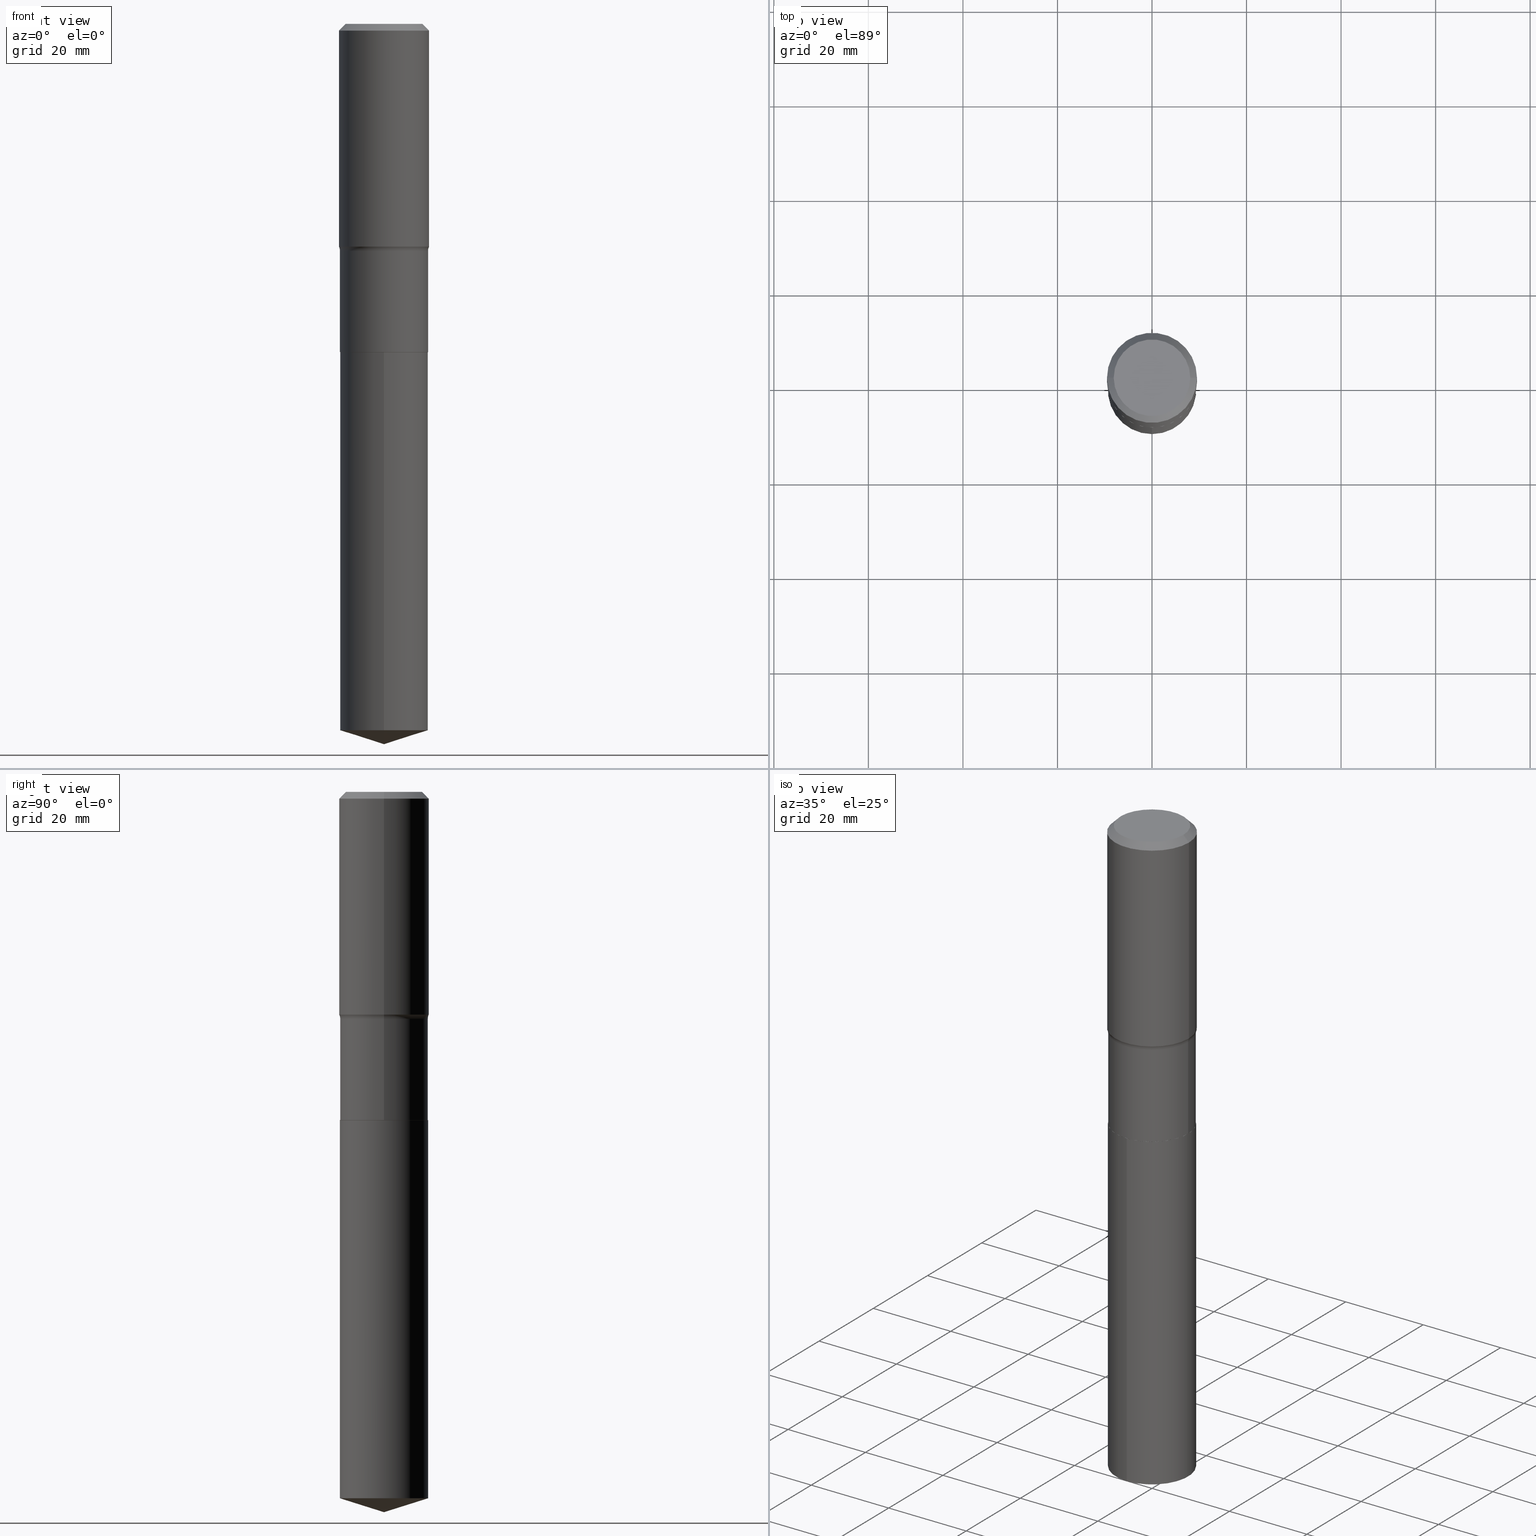
[diagram: canonical four-view strip — front | top / right | iso, engineering-drawing reading convention]
A machine part, canonical four-view strip (front | top / right | iso — engineering-drawing reading convention). The complete STEP part file that produces these views, byte-faithful:
ISO-10303-21;
HEADER;
FILE_DESCRIPTION (( 'STEP AP203' ),
    '1' );
FILE_NAME ('51544.STEP',
    '2024-04-19T13:01:56',
    ( '' ),
    ( '' ),
    'SwSTEP 2.0',
    'SolidWorks 2023',
    '' );
FILE_SCHEMA (( 'CONFIG_CONTROL_DESIGN' ));
ENDSEC;

DATA;
#1 = PERSON ( 'UNSPECIFIED', 'UNSPECIFIED', 'UNSPECIFIED', ('UNSPECIFIED'), ('UNSPECIFIED'), ('UNSPECIFIED') ) ;
#2 = DIRECTION ( 'NONE',  ( 1.000000000000000000, -6.982962677686265133E-15, 0.000000000000000000 ) ) ;
#3 = APPROVAL_PERSON_ORGANIZATION ( #368, #196, #58 ) ;
#4 = ORIENTED_EDGE ( 'NONE', *, *, #281, .T. ) ;
#5 = EDGE_CURVE ( 'NONE', #208, #383, #353, .T. ) ;
#6 = DIRECTION ( 'NONE',  ( 1.000000000000000000, -6.982962677686265922E-15, 4.876176775795935793E-29 ) ) ;
#7 = EDGE_CURVE ( 'NONE', #394, #337, #16, .T. ) ;
#8 = DIRECTION ( 'NONE',  ( -1.000000000000000000, 7.105427357601001859E-15, 0.000000000000000000 ) ) ;
#9 = ORIENTED_EDGE ( 'NONE', *, *, #442, .T. ) ;
#10 = CARTESIAN_POINT ( 'NONE',  ( -0.3667000000000000814, -6.938897133726299392E-15, -2.734400000000000830 ) ) ;
#11 = AXIS2_PLACEMENT_3D ( 'NONE', #232, #270, #197 ) ;
#12 = VERTEX_POINT ( 'NONE', #240 ) ;
#13 = DIMENSIONAL_EXPONENTS ( 1.000000000000000000, 0.000000000000000000, 0.000000000000000000, 0.000000000000000000, 0.000000000000000000, 0.000000000000000000, 0.000000000000000000 ) ;
#14 = AXIS2_PLACEMENT_3D ( 'NONE', #104, #105, #483 ) ;
#15 = APPROVAL_DATE_TIME ( #352, #411 ) ;
#16 = LINE ( 'NONE', #282, #39 ) ;
#17 = DIRECTION ( 'NONE',  ( 1.000000000000000000, -6.982962677686264344E-15, 0.000000000000000000 ) ) ;
#18 = CARTESIAN_POINT ( 'NONE',  ( -8.160539444729356749E-28, 1.165111391921115396E-13, 33.37007874015748143 ) ) ;
#19 = CIRCLE ( 'NONE', #247, 0.3750000000000000555 ) ;
#20 = CIRCLE ( 'NONE', #289, 0.3667000000000000814 ) ;
#21 = ORIENTED_EDGE ( 'NONE', *, *, #153, .F. ) ;
#22 = PRODUCT ( '51544', '51544', '', ( #76 ) ) ;
#23 = EDGE_CURVE ( 'NONE', #62, #340, #279, .T. ) ;
#24 = DIRECTION ( 'NONE',  ( 0.7071067811865454633, -7.319954787623248157E-15, -0.7071067811865495711 ) ) ;
#25 = PERSON_AND_ORGANIZATION ( #1, #215 ) ;
#26 = PERSON_AND_ORGANIZATION ( #1, #215 ) ;
#27 = EDGE_CURVE ( 'NONE', #155, #91, #130, .T. ) ;
#28 = CARTESIAN_POINT ( 'NONE',  ( 0.000000000000000000, 0.000000000000000000, 0.000000000000000000 ) ) ;
#29 = DIRECTION ( 'NONE',  ( -6.982962677686265922E-15, -1.000000000000000000, 2.975869274144077348E-15 ) ) ;
#30 = AXIS2_PLACEMENT_3D ( 'NONE', #164, #373, #78 ) ;
#31 = AXIS2_PLACEMENT_3D ( 'NONE', #187, #49, #264 ) ;
#32 = FACE_OUTER_BOUND ( 'NONE', #157, .T. ) ;
#33 = CARTESIAN_POINT ( 'NONE',  ( 0.000000000000000000, 0.000000000000000000, 0.000000000000000000 ) ) ;
#34 = DIRECTION ( 'NONE',  ( -2.445466253269083818E-29, 3.491484994764236272E-15, 1.000000000000000000 ) ) ;
#35 = DIRECTION ( 'NONE',  ( 1.000000000000000000, -6.982962677686267499E-15, 4.876176775795935793E-29 ) ) ;
#36 = FACE_OUTER_BOUND ( 'NONE', #265, .T. ) ;
#37 = AXIS2_PLACEMENT_3D ( 'NONE', #329, #34, #216 ) ;
#38 = CARTESIAN_POINT ( 'NONE',  ( 6.686889903632638979E-29, -9.547106572932700526E-15, -2.734400000000000830 ) ) ;
#39 = VECTOR ( 'NONE', #361, 39.37007874015748143 ) ;
#40 = CARTESIAN_POINT ( 'NONE',  ( 0.000000000000000000, 0.000000000000000000, 0.000000000000000000 ) ) ;
#41 = ORIENTED_EDGE ( 'NONE', *, *, #228, .T. ) ;
#42 = FACE_OUTER_BOUND ( 'NONE', #379, .T. ) ;
#43 = ORIENTED_EDGE ( 'NONE', *, *, #88, .T. ) ;
#44 = LINE ( 'NONE', #450, #341 ) ;
#45 = LOCAL_TIME ( 9, 1, 56.00000000000000000, #95 ) ;
#46 = ORIENTED_EDGE ( 'NONE', *, *, #328, .F. ) ;
#47 = VECTOR ( 'NONE', #179, 39.37007874015748143 ) ;
#48 = DATE_TIME_ROLE ( 'creation_date' ) ;
#49 = DIRECTION ( 'NONE',  ( -2.445468806185136597E-29, 3.491481338843145583E-15, 1.000000000000000000 ) ) ;
#50 = EDGE_LOOP ( 'NONE', ( #116, #400, #43, #152 ) ) ;
#51 = ADVANCED_FACE ( 'NONE', ( #425 ), #399, .T. ) ;
#52 = APPROVAL_STATUS ( 'not_yet_approved' ) ;
#53 = DIRECTION ( 'NONE',  ( -2.445468806185136597E-29, 3.491481338843145583E-15, 1.000000000000000000 ) ) ;
#54 = ORIENTED_EDGE ( 'NONE', *, *, #235, .F. ) ;
#55 = APPLICATION_CONTEXT ( 'configuration controlled 3d designs of mechanical parts and assemblies' ) ;
#56 = ADVANCED_BREP_SHAPE_REPRESENTATION ( '51544', ( #191, #334, #427 ), #300 ) ;
#57 = APPROVAL_ROLE ( '' ) ;
#58 = APPROVAL_ROLE ( '' ) ;
#59 = CIRCLE ( 'NONE', #293, 0.3672000000000000264 ) ;
#60 = CARTESIAN_POINT ( 'NONE',  ( -0.3750000000000000555, -6.734092147823022708E-16, -0.05625000000000037609 ) ) ;
#61 = COORDINATED_UNIVERSAL_TIME_OFFSET ( 5, 0, .BEHIND. ) ;
#62 = VERTEX_POINT ( 'NONE', #464 ) ;
#63 = DIRECTION ( 'NONE',  ( -0.7071067811865454633, 2.468850131082235367E-15, -0.7071067811865495711 ) ) ;
#64 = CC_DESIGN_PERSON_AND_ORGANIZATION_ASSIGNMENT ( #25, #476, ( #22 ) ) ;
#65 = CARTESIAN_POINT ( 'NONE',  ( -0.3750000000000000555, 2.422215178822422188E-15, -0.05625000000000037609 ) ) ;
#66 = VECTOR ( 'NONE', #122, 39.37007874015748143 ) ;
#67 = ORIENTED_EDGE ( 'NONE', *, *, #404, .F. ) ;
#68 = PERSON_AND_ORGANIZATION ( #1, #215 ) ;
#69 = CARTESIAN_POINT ( 'NONE',  ( 4.621446949928673110E-29, -6.598201434145779157E-15, -1.889800000000000590 ) ) ;
#70 = COORDINATED_UNIVERSAL_TIME_OFFSET ( 5, 0, .BEHIND. ) ;
#71 = CARTESIAN_POINT ( 'NONE',  ( 0.3750000000000001110, -2.618611004132350411E-15, 1.828566290923476483E-29 ) ) ;
#72 = VECTOR ( 'NONE', #63, 39.37007874015748143 ) ;
#73 = COORDINATED_UNIVERSAL_TIME_OFFSET ( 5, 0, .BEHIND. ) ;
#74 = DIRECTION ( 'NONE',  ( -2.438088387897960049E-29, 3.491481338843145188E-15, 1.000000000000000000 ) ) ;
#75 = DIRECTION ( 'NONE',  ( 6.982962677686265922E-15, 1.000000000000000000, -3.491484994764236667E-15 ) ) ;
#76 = MECHANICAL_CONTEXT ( 'NONE', #140, 'mechanical' ) ;
#77 = CC_DESIGN_DATE_AND_TIME_ASSIGNMENT ( #454, #48, ( #272 ) ) ;
#78 = DIRECTION ( 'NONE',  ( 1.000000000000000000, -6.982962677686266711E-15, 0.000000000000000000 ) ) ;
#79 = CIRCLE ( 'NONE', #376, 0.3750000000000002220 ) ;
#80 = FACE_OUTER_BOUND ( 'NONE', #84, .T. ) ;
#81 = EDGE_LOOP ( 'NONE', ( #419, #269, #386, #350 ) ) ;
#82 = EDGE_CURVE ( 'NONE', #396, #383, #276, .T. ) ;
#83 = LINE ( 'NONE', #422, #66 ) ;
#84 = EDGE_LOOP ( 'NONE', ( #189, #467 ) ) ;
#85 = LINE ( 'NONE', #343, #322 ) ;
#86 = DIRECTION ( 'NONE',  ( 1.000000000000000000, -6.982962677686264344E-15, 0.000000000000000000 ) ) ;
#87 = ORIENTED_EDGE ( 'NONE', *, *, #5, .T. ) ;
#88 = EDGE_CURVE ( 'NONE', #337, #383, #421, .T. ) ;
#89 = DATE_AND_TIME ( #403, #451 ) ;
#90 = LINE ( 'NONE', #463, #113 ) ;
#91 = VERTEX_POINT ( 'NONE', #60 ) ;
#92 = DATE_AND_TIME ( #366, #242 ) ;
#93 = AXIS2_PLACEMENT_3D ( 'NONE', #335, #305, #490 ) ;
#94 = DIRECTION ( 'NONE',  ( -6.982962677686265922E-15, -1.000000000000000000, 3.500519750498688260E-15 ) ) ;
#95 = COORDINATED_UNIVERSAL_TIME_OFFSET ( 5, 0, .BEHIND. ) ;
#96 = DIRECTION ( 'NONE',  ( -6.982962677686266711E-15, -1.000000000000000000, 3.491481338843145583E-15 ) ) ;
#97 = ORIENTED_EDGE ( 'NONE', *, *, #119, .F. ) ;
#98 = ORIENTED_EDGE ( 'NONE', *, *, #358, .F. ) ;
#99 = CC_DESIGN_DATE_AND_TIME_ASSIGNMENT ( #89, #459, ( #398 ) ) ;
#100 = PERSON_AND_ORGANIZATION ( #1, #215 ) ;
#101 = DIRECTION ( 'NONE',  ( -2.445468806185136597E-29, 3.491481338843145583E-15, 1.000000000000000000 ) ) ;
#102 = DIRECTION ( 'NONE',  ( 0.000000000000000000, 0.000000000000000000, 1.000000000000000000 ) ) ;
#103 = PERSON_AND_ORGANIZATION ( #1, #215 ) ;
#104 = CARTESIAN_POINT ( 'NONE',  ( -1.591006383764331135E-46, 2.271535455632769222E-32, 6.505936120470319537E-18 ) ) ;
#105 = DIRECTION ( 'NONE',  ( -2.445468806185136597E-29, 3.491481338843145583E-15, 1.000000000000000000 ) ) ;
#106 = CYLINDRICAL_SURFACE ( 'NONE', #433, 0.3672000000000000264 ) ;
#107 = CC_DESIGN_APPROVAL ( #196, ( #272 ) ) ;
#108 = DIRECTION ( 'NONE',  ( -6.982962677686265922E-15, -1.000000000000000000, 2.975869274144077348E-15 ) ) ;
#109 = CARTESIAN_POINT ( 'NONE',  ( 1.375576203479148549E-30, -1.963958253099282234E-16, -0.05625000000000037609 ) ) ;
#110 = FACE_OUTER_BOUND ( 'NONE', #280, .T. ) ;
#111 = ORIENTED_EDGE ( 'NONE', *, *, #439, .T. ) ;
#112 = EDGE_CURVE ( 'NONE', #12, #91, #175, .T. ) ;
#113 = VECTOR ( 'NONE', #236, 39.37007874015748854 ) ;
#114 = FACE_OUTER_BOUND ( 'NONE', #206, .T. ) ;
#115 = AXIS2_PLACEMENT_3D ( 'NONE', #437, #74, #251 ) ;
#116 = ORIENTED_EDGE ( 'NONE', *, *, #439, .F. ) ;
#117 = CARTESIAN_POINT ( 'NONE',  ( -2.564143895246330080E-15, -0.3672000000000096298, -2.734399999999999054 ) ) ;
#118 = ORIENTED_EDGE ( 'NONE', *, *, #182, .F. ) ;
#119 = EDGE_CURVE ( 'NONE', #208, #121, #453, .T. ) ;
#120 = CARTESIAN_POINT ( 'NONE',  ( 0.3671999999999999709, -9.162345329392175895E-15, -1.889800000000000590 ) ) ;
#121 = VERTEX_POINT ( 'NONE', #290 ) ;
#122 = DIRECTION ( 'NONE',  ( 0.7071067811860163310, -2.468850131076692830E-15, 0.7071067811870787034 ) ) ;
#123 = CIRCLE ( 'NONE', #31, 0.3187499999999999778 ) ;
#124 = EDGE_LOOP ( 'NONE', ( #429, #415, #21 ) ) ;
#125 = AXIS2_PLACEMENT_3D ( 'NONE', #357, #96, #314 ) ;
#126 = CARTESIAN_POINT ( 'NONE',  ( -8.160539444729356749E-28, 1.165111391921115396E-13, 33.37007874015748143 ) ) ;
#127 = CARTESIAN_POINT ( 'NONE',  ( 0.3671999999999999709, -2.564143895246397133E-15, 1.790532112072267385E-29 ) ) ;
#128 = EDGE_LOOP ( 'NONE', ( #245, #237 ) ) ;
#129 = CIRCLE ( 'NONE', #37, 0.3672000000000000264 ) ;
#130 = LINE ( 'NONE', #65, #72 ) ;
#131 = CALENDAR_DATE ( 2024, 19, 4 ) ;
#132 = VERTEX_POINT ( 'NONE', #218 ) ;
#133 = DIRECTION ( 'NONE',  ( -6.982962677686265922E-15, -1.000000000000000000, 2.975869274144077348E-15 ) ) ;
#134 = CARTESIAN_POINT ( 'NONE',  ( 6.686889903632638979E-29, -9.547106572932700526E-15, -2.734400000000000830 ) ) ;
#135 = AXIS2_PLACEMENT_3D ( 'NONE', #38, #385, #223 ) ;
#136 = FACE_OUTER_BOUND ( 'NONE', #81, .T. ) ;
#137 = LINE ( 'NONE', #71, #262 ) ;
#138 = FACE_OUTER_BOUND ( 'NONE', #128, .T. ) ;
#139 = FACE_OUTER_BOUND ( 'NONE', #389, .T. ) ;
#140 = APPLICATION_CONTEXT ( 'configuration controlled 3d designs of mechanical parts and assemblies' ) ;
#141 = EDGE_CURVE ( 'NONE', #210, #132, #146, .T. ) ;
#142 = DIRECTION ( 'NONE',  ( -2.445468806185136877E-29, 3.491481338843145188E-15, 1.000000000000000000 ) ) ;
#143 = AXIS2_PLACEMENT_3D ( 'NONE', #151, #460, #298 ) ;
#144 = AXIS2_PLACEMENT_3D ( 'NONE', #109, #370, #445 ) ;
#145 = EDGE_CURVE ( 'NONE', #195, #12, #474, .T. ) ;
#146 = LINE ( 'NONE', #327, #47 ) ;
#147 = DIRECTION ( 'NONE',  ( 2.445466253269083258E-29, -3.491484994764236667E-15, -1.000000000000000000 ) ) ;
#148 = DIRECTION ( 'NONE',  ( -2.445468806185136877E-29, 3.491481338843145188E-15, 1.000000000000000000 ) ) ;
#149 = CARTESIAN_POINT ( 'NONE',  ( -0.3672000000000000264, -5.462668207493439047E-15, -2.733900000000000219 ) ) ;
#150 = ORIENTED_EDGE ( 'NONE', *, *, #332, .T. ) ;
#151 = CARTESIAN_POINT ( 'NONE',  ( 4.621446949928673110E-29, -6.598201434145779157E-15, -1.889800000000000590 ) ) ;
#152 = ORIENTED_EDGE ( 'NONE', *, *, #5, .F. ) ;
#153 = EDGE_CURVE ( 'NONE', #456, #132, #324, .T. ) ;
#154 = CARTESIAN_POINT ( 'NONE',  ( 2.609112925711154729E-15, 0.3671999999999904785, -2.734400000000001274 ) ) ;
#155 = VERTEX_POINT ( 'NONE', #440 ) ;
#156 = LINE ( 'NONE', #414, #351 ) ;
#157 = EDGE_LOOP ( 'NONE', ( #150, #267, #162, #413 ) ) ;
#158 = CIRCLE ( 'NONE', #392, 0.3672000000000000264 ) ;
#159 = DIRECTION ( 'NONE',  ( 1.000000000000000000, -6.982962677686264344E-15, 0.000000000000000000 ) ) ;
#160 = ORIENTED_EDGE ( 'NONE', *, *, #436, .F. ) ;
#161 = SHAPE_DEFINITION_REPRESENTATION ( #362, #56 ) ;
#162 = ORIENTED_EDGE ( 'NONE', *, *, #277, .F. ) ;
#163 = ADVANCED_FACE ( 'NONE', ( #32 ), #287, .T. ) ;
#164 = CARTESIAN_POINT ( 'NONE',  ( 4.538302449041883434E-29, -6.479493122455429093E-15, -1.855800588240382964 ) ) ;
#165 = CONICAL_SURFACE ( 'NONE', #369, 0.3667000000000000814, 0.7853981633966971021 ) ;
#166 = ORIENTED_EDGE ( 'NONE', *, *, #332, .F. ) ;
#167 = CLOSED_SHELL ( 'NONE', ( #384, #217, #363, #203, #163, #238, #288, #356, #207, #374, #180, #485 ) ) ;
#168 = EDGE_CURVE ( 'NONE', #155, #195, #222, .T. ) ;
#169 = ORIENTED_EDGE ( 'NONE', *, *, #336, .F. ) ;
#170 = DATE_AND_TIME ( #131, #45 ) ;
#171 = CARTESIAN_POINT ( 'NONE',  ( 0.3750000000000002220, -9.098104126587783053E-15, -1.855800588240382964 ) ) ;
#172 = DIRECTION ( 'NONE',  ( -2.445468806185136597E-29, 3.491481338843145583E-15, 1.000000000000000000 ) ) ;
#173 = TOROIDAL_SURFACE ( 'NONE', #143, 0.4451999999999999846, 0.07800000000000002764 ) ;
#174 =( LENGTH_UNIT ( ) NAMED_UNIT ( * ) SI_UNIT ( $, .METRE. ) );
#175 = CIRCLE ( 'NONE', #434, 0.3750000000000000555 ) ;
#176 = TOROIDAL_SURFACE ( 'NONE', #371, 0.4451999999999999846, 0.07800000000000002764 ) ;
#177 = DESIGN_CONTEXT ( 'detailed design', #55, 'design' ) ;
#178 = PERSON_AND_ORGANIZATION_ROLE ( 'creator' ) ;
#179 = DIRECTION ( 'NONE',  ( -6.659769872151635244E-15, -0.9537169507482271547, 0.3007057995042725640 ) ) ;
#180 = ADVANCED_FACE ( 'NONE', ( #325 ), #408, .F. ) ;
#181 = CARTESIAN_POINT ( 'NONE',  ( 0.000000000000000000, 0.000000000000000000, 0.000000000000000000 ) ) ;
#182 = EDGE_CURVE ( 'NONE', #344, #466, #20, .T. ) ;
#183 = DIRECTION ( 'NONE',  ( -2.445466253269083818E-29, 3.491484994764236272E-15, 1.000000000000000000 ) ) ;
#184 =( NAMED_UNIT ( * ) SI_UNIT ( $, .STERADIAN. ) SOLID_ANGLE_UNIT ( ) );
#185 = AXIS2_PLACEMENT_3D ( 'NONE', #259, #488, #194 ) ;
#186 = ADVANCED_FACE ( 'NONE', ( #443 ), #401, .T. ) ;
#187 = CARTESIAN_POINT ( 'NONE',  ( -1.591006383764331135E-46, 2.271535455632769222E-32, 6.505936120470319537E-18 ) ) ;
#188 = LINE ( 'NONE', #154, #286 ) ;
#189 = ORIENTED_EDGE ( 'NONE', *, *, #168, .T. ) ;
#190 = CARTESIAN_POINT ( 'NONE',  ( 6.685667169229545057E-29, -9.545360832263276655E-15, -2.733900000000000219 ) ) ;
#191 = MANIFOLD_SOLID_BREP ( 'Body-Move/Copy2[1]', #377 ) ;
#192 = ORIENTED_EDGE ( 'NONE', *, *, #182, .T. ) ;
#193 = AXIS2_PLACEMENT_3D ( 'NONE', #444, #147, #75 ) ;
#194 = DIRECTION ( 'NONE',  ( 1.000000000000000000, -6.982962677686265922E-15, 0.000000000000000000 ) ) ;
#195 = VERTEX_POINT ( 'NONE', #407 ) ;
#196 = APPROVAL ( #390, 'UNSPECIFIED' ) ;
#197 = DIRECTION ( 'NONE',  ( 1.000000000000000000, -6.982962677686265922E-15, 4.876176775795935793E-29 ) ) ;
#198 = ORIENTED_EDGE ( 'NONE', *, *, #153, .T. ) ;
#199 = DIRECTION ( 'NONE',  ( -2.445466253269083818E-29, 3.491484994764236272E-15, 1.000000000000000000 ) ) ;
#200 = ORIENTED_EDGE ( 'NONE', *, *, #277, .T. ) ;
#201 = CONICAL_SURFACE ( 'NONE', #477, 0.3750000000000000555, 0.7853981633974453924 ) ;
#202 = CALENDAR_DATE ( 2024, 19, 4 ) ;
#203 = ADVANCED_FACE ( 'NONE', ( #323 ), #176, .F. ) ;
#204 = ORIENTED_EDGE ( 'NONE', *, *, #82, .T. ) ;
#205 = ORIENTED_EDGE ( 'NONE', *, *, #358, .T. ) ;
#206 = EDGE_LOOP ( 'NONE', ( #423, #111, #41, #354 ) ) ;
#207 = ADVANCED_FACE ( 'NONE', ( #295 ), #360, .T. ) ;
#208 = VERTEX_POINT ( 'NONE', #171 ) ;
#209 = CC_DESIGN_PERSON_AND_ORGANIZATION_ASSIGNMENT ( #100, #387, ( #420 ) ) ;
#210 = VERTEX_POINT ( 'NONE', #481 ) ;
#211 = CARTESIAN_POINT ( 'NONE',  ( 6.686889903632637858E-29, -9.547106572932698948E-15, -2.734400000000000386 ) ) ;
#212 = DIRECTION ( 'NONE',  ( -2.445466253269083818E-29, 3.491484994764236272E-15, 1.000000000000000000 ) ) ;
#213 = APPLICATION_PROTOCOL_DEFINITION ( 'international standard', 'config_control_design', 1994, #55 ) ;
#214 = CYLINDRICAL_SURFACE ( 'NONE', #221, 0.3671999999999999709 ) ;
#215 = ORGANIZATION ( 'UNSPECIFIED', 'UNSPECIFIED', '' ) ;
#216 = DIRECTION ( 'NONE',  ( -6.982962677686265922E-15, -1.000000000000000000, 2.975869274144077348E-15 ) ) ;
#217 = ADVANCED_FACE ( 'NONE', ( #139 ), #201, .T. ) ;
#218 = CARTESIAN_POINT ( 'NONE',  ( -2.564143895246252377E-15, -0.3672000000000205100, -5.884222284723638730 ) ) ;
#219 = CC_DESIGN_PERSON_AND_ORGANIZATION_ASSIGNMENT ( #103, #310, ( #420 ) ) ;
#220 = CARTESIAN_POINT ( 'NONE',  ( 4.538302449041883434E-29, -6.479493122455429093E-15, -1.855800588240382964 ) ) ;
#221 = AXIS2_PLACEMENT_3D ( 'NONE', #181, #292, #35 ) ;
#222 = CIRCLE ( 'NONE', #14, 0.3187499999999999778 ) ;
#223 = DIRECTION ( 'NONE',  ( 1.000000000000000000, -6.982962677686264344E-15, 0.000000000000000000 ) ) ;
#224 = EDGE_LOOP ( 'NONE', ( #381, #426, #226, #297 ) ) ;
#225 = DIRECTION ( 'NONE',  ( -0.7071067811860163310, 7.493145998868434073E-15, 0.7071067811870787034 ) ) ;
#226 = ORIENTED_EDGE ( 'NONE', *, *, #27, .T. ) ;
#227 = CYLINDRICAL_SURFACE ( 'NONE', #11, 0.3750000000000001110 ) ;
#228 = EDGE_CURVE ( 'NONE', #208, #12, #137, .T. ) ;
#229 = ORIENTED_EDGE ( 'NONE', *, *, #23, .F. ) ;
#230 = CIRCLE ( 'NONE', #185, 0.3671999999999999709 ) ;
#231 = CC_DESIGN_SECURITY_CLASSIFICATION ( #398, ( #420 ) ) ;
#232 = CARTESIAN_POINT ( 'NONE',  ( 0.000000000000000000, 0.000000000000000000, 0.000000000000000000 ) ) ;
#233 = AXIS2_PLACEMENT_3D ( 'NONE', #28, #435, #250 ) ;
#234 = ORIENTED_EDGE ( 'NONE', *, *, #430, .T. ) ;
#235 = EDGE_CURVE ( 'NONE', #132, #456, #129, .T. ) ;
#236 = DIRECTION ( 'NONE',  ( 6.776566513254260504E-15, 0.9537169507482292641, 0.3007057995042659027 ) ) ;
#237 = ORIENTED_EDGE ( 'NONE', *, *, #23, .T. ) ;
#238 = ADVANCED_FACE ( 'NONE', ( #291 ), #214, .T. ) ;
#239 = SECURITY_CLASSIFICATION_LEVEL ( 'unclassified' ) ;
#240 = CARTESIAN_POINT ( 'NONE',  ( 0.3750000000000000555, -2.815006829442278240E-15, -0.05625000000000037609 ) ) ;
#241 = PERSON_AND_ORGANIZATION_ROLE ( 'classification_officer' ) ;
#242 = LOCAL_TIME ( 9, 1, 56.00000000000000000, #70 ) ;
#243 = CARTESIAN_POINT ( 'NONE',  ( 1.375576203479148549E-30, -1.963958253099282234E-16, -0.05625000000000037609 ) ) ;
#244 = CIRCLE ( 'NONE', #406, 0.3667000000000000814 ) ;
#245 = ORIENTED_EDGE ( 'NONE', *, *, #470, .T. ) ;
#246 = ORIENTED_EDGE ( 'NONE', *, *, #424, .F. ) ;
#247 = AXIS2_PLACEMENT_3D ( 'NONE', #274, #53, #159 ) ;
#248 = CARTESIAN_POINT ( 'NONE',  ( 6.686889903632637858E-29, -9.547106572932698948E-15, -2.734400000000000386 ) ) ;
#249 = CC_DESIGN_APPROVAL ( #294, ( #420 ) ) ;
#250 = DIRECTION ( 'NONE',  ( 1.000000000000000000, -6.982962677686267499E-15, 4.876176775795935793E-29 ) ) ;
#251 = DIRECTION ( 'NONE',  ( 1.000000000000000000, -6.982962677686265922E-15, 4.876176775795935793E-29 ) ) ;
#252 = CARTESIAN_POINT ( 'NONE',  ( 6.686889903632638979E-29, -9.547106572932700526E-15, -2.734400000000000830 ) ) ;
#253 = APPROVAL_DATE_TIME ( #170, #196 ) ;
#254 = CARTESIAN_POINT ( 'NONE',  ( 1.438967400471922140E-28, -2.054466381621928919E-14, -5.884222284723639618 ) ) ;
#255 = CONICAL_SURFACE ( 'NONE', #135, 0.3667000000000000814, 0.7853981633966971021 ) ;
#256 = DIRECTION ( 'NONE',  ( -2.445468806185136597E-29, 3.491481338843145583E-15, 1.000000000000000000 ) ) ;
#257 = AXIS2_PLACEMENT_3D ( 'NONE', #18, #317, #94 ) ;
#258 = DIRECTION ( 'NONE',  ( 1.000000000000000000, -6.982962677686265922E-15, 4.883557194083112340E-29 ) ) ;
#259 = CARTESIAN_POINT ( 'NONE',  ( 4.621446949928673110E-29, -6.598201434145779157E-15, -1.889800000000000590 ) ) ;
#260 = CARTESIAN_POINT ( 'NONE',  ( 0.3667000000000000814, -1.210775898684025347E-14, -2.734400000000000830 ) ) ;
#261 = ORIENTED_EDGE ( 'NONE', *, *, #235, .T. ) ;
#262 = VECTOR ( 'NONE', #142, 39.37007874015748143 ) ;
#263 = VECTOR ( 'NONE', #471, 39.37007874015748143 ) ;
#264 = DIRECTION ( 'NONE',  ( 1.000000000000000000, -6.982962677686267499E-15, 4.876227444496879000E-29 ) ) ;
#265 = EDGE_LOOP ( 'NONE', ( #98, #198, #299, #229 ) ) ;
#266 = DIRECTION ( 'NONE',  ( -2.445468806185136597E-29, 3.491481338843145583E-15, 1.000000000000000000 ) ) ;
#267 = ORIENTED_EDGE ( 'NONE', *, *, #7, .T. ) ;
#268 = FACE_OUTER_BOUND ( 'NONE', #306, .T. ) ;
#269 = ORIENTED_EDGE ( 'NONE', *, *, #336, .T. ) ;
#270 = DIRECTION ( 'NONE',  ( -2.445468806185136597E-29, 3.491481338843145583E-15, 1.000000000000000000 ) ) ;
#271 = ORIENTED_EDGE ( 'NONE', *, *, #27, .F. ) ;
#272 = PRODUCT_DEFINITION ( 'UNKNOWN', '', #420, #177 ) ;
#273 = APPROVAL_ROLE ( '' ) ;
#274 = CARTESIAN_POINT ( 'NONE',  ( 1.375576203479148549E-30, -1.963958253099282234E-16, -0.05625000000000037609 ) ) ;
#275 = DIRECTION ( 'NONE',  ( -2.445468806185136597E-29, 3.491481338843145583E-15, 1.000000000000000000 ) ) ;
#276 = LINE ( 'NONE', #127, #263 ) ;
#277 = EDGE_CURVE ( 'NONE', #383, #337, #230, .T. ) ;
#278 = AXIS2_PLACEMENT_3D ( 'NONE', #296, #303, #458 ) ;
#279 = CIRCLE ( 'NONE', #428, 0.3672000000000000264 ) ;
#280 = EDGE_LOOP ( 'NONE', ( #246, #97, #87, #200 ) ) ;
#281 = EDGE_CURVE ( 'NONE', #466, #394, #44, .T. ) ;
#282 = CARTESIAN_POINT ( 'NONE',  ( -0.3671999999999999709, 2.609112925711087676E-15, -1.806232965141601217E-29 ) ) ;
#283 = CALENDAR_DATE ( 2024, 19, 4 ) ;
#284 = ORIENTED_EDGE ( 'NONE', *, *, #7, .F. ) ;
#285 = APPROVAL_DATE_TIME ( #92, #294 ) ;
#286 = VECTOR ( 'NONE', #333, 39.37007874015748143 ) ;
#287 = CYLINDRICAL_SURFACE ( 'NONE', #233, 0.3671999999999999709 ) ;
#288 = ADVANCED_FACE ( 'NONE', ( #110 ), #173, .F. ) ;
#289 = AXIS2_PLACEMENT_3D ( 'NONE', #134, #101, #410 ) ;
#290 = CARTESIAN_POINT ( 'NONE',  ( -0.3750000000000002220, -3.814957863355051818E-15, -1.855800588240382964 ) ) ;
#291 = FACE_OUTER_BOUND ( 'NONE', #309, .T. ) ;
#292 = DIRECTION ( 'NONE',  ( -2.445468806185136597E-29, 3.491481338843145583E-15, 1.000000000000000000 ) ) ;
#293 = AXIS2_PLACEMENT_3D ( 'NONE', #190, #339, #2 ) ;
#294 = APPROVAL ( #473, 'UNSPECIFIED' ) ;
#295 = FACE_OUTER_BOUND ( 'NONE', #224, .T. ) ;
#296 = CARTESIAN_POINT ( 'NONE',  ( 6.685667169229545057E-29, -9.545360832263276655E-15, -2.733900000000000219 ) ) ;
#297 = ORIENTED_EDGE ( 'NONE', *, *, #446, .T. ) ;
#298 = DIRECTION ( 'NONE',  ( 1.000000000000000000, -6.982962677686265922E-15, 4.883557194083112340E-29 ) ) ;
#299 = ORIENTED_EDGE ( 'NONE', *, *, #328, .T. ) ;
#300 =( GEOMETRIC_REPRESENTATION_CONTEXT ( 3 ) GLOBAL_UNCERTAINTY_ASSIGNED_CONTEXT ( ( #338 ) ) GLOBAL_UNIT_ASSIGNED_CONTEXT ( ( #409, #438, #184 ) ) REPRESENTATION_CONTEXT ( 'NONE', 'WORKASPACE' ) );
#301 = AXIS2_PLACEMENT_3D ( 'NONE', #364, #212, #108 ) ;
#302 = AXIS2_PLACEMENT_3D ( 'NONE', #489, #346, #8 ) ;
#303 = DIRECTION ( 'NONE',  ( -2.445468806185136597E-29, 3.491481338843145583E-15, 1.000000000000000000 ) ) ;
#304 = ORIENTED_EDGE ( 'NONE', *, *, #141, .F. ) ;
#305 = DIRECTION ( 'NONE',  ( 2.438088387897960049E-29, -3.491481338843145188E-15, -1.000000000000000000 ) ) ;
#306 = EDGE_LOOP ( 'NONE', ( #192, #4, #166, #160 ) ) ;
#307 = PLANE ( 'NONE',  #93 ) ;
#308 = CC_DESIGN_PERSON_AND_ORGANIZATION_ASSIGNMENT ( #68, #178, ( #272 ) ) ;
#309 = EDGE_LOOP ( 'NONE', ( #284, #9, #204, #432 ) ) ;
#310 = PERSON_AND_ORGANIZATION_ROLE ( 'design_supplier' ) ;
#311 = CARTESIAN_POINT ( 'NONE',  ( 2.609112925711232037E-15, 0.3671999999999793762, -5.884222284723640506 ) ) ;
#312 = VECTOR ( 'NONE', #24, 39.37007874015748143 ) ;
#313 = ORIENTED_EDGE ( 'NONE', *, *, #228, .F. ) ;
#314 = DIRECTION ( 'NONE',  ( 1.000000000000000000, -6.982962677686255667E-15, 0.000000000000000000 ) ) ;
#315 = ORIENTED_EDGE ( 'NONE', *, *, #119, .T. ) ;
#316 = AXIS2_PLACEMENT_3D ( 'NONE', #254, #183, #372 ) ;
#317 = DIRECTION ( 'NONE',  ( -2.445466253269083818E-29, 3.491484994764236272E-15, 1.000000000000000000 ) ) ;
#318 = DIRECTION ( 'NONE',  ( -2.445466253269083818E-29, 3.491484994764236272E-15, 1.000000000000000000 ) ) ;
#319 = PERSON_AND_ORGANIZATION ( #1, #215 ) ;
#320 = DIRECTION ( 'NONE',  ( -1.000000000000000000, 6.982962677686266711E-15, 0.000000000000000000 ) ) ;
#321 = APPLICATION_PROTOCOL_DEFINITION ( 'international standard', 'config_control_design', 1994, #140 ) ;
#322 = VECTOR ( 'NONE', #455, 39.37007874015748143 ) ;
#323 = FACE_OUTER_BOUND ( 'NONE', #50, .T. ) ;
#324 = CIRCLE ( 'NONE', #316, 0.3672000000000000264 ) ;
#325 = FACE_OUTER_BOUND ( 'NONE', #461, .T. ) ;
#326 = DIRECTION ( 'NONE',  ( -2.445466253269083818E-29, 3.491484994764236272E-15, 1.000000000000000000 ) ) ;
#327 = CARTESIAN_POINT ( 'NONE',  ( 1.467279751961450235E-28, -2.094890996858541842E-14, -6.000000000000000888 ) ) ;
#328 = EDGE_CURVE ( 'NONE', #132, #340, #85, .T. ) ;
#329 = CARTESIAN_POINT ( 'NONE',  ( 1.438967400471922140E-28, -2.054466381621928919E-14, -5.884222284723639618 ) ) ;
#330 = CIRCLE ( 'NONE', #278, 0.3672000000000000264 ) ;
#331 = LENGTH_MEASURE_WITH_UNIT ( LENGTH_MEASURE( 0.02539999999999999897 ), #174 );
#332 = EDGE_CURVE ( 'NONE', #396, #394, #330, .T. ) ;
#333 = DIRECTION ( 'NONE',  ( -2.445466253269083538E-29, 3.491484994764236667E-15, 1.000000000000000000 ) ) ;
#334 = MANIFOLD_SOLID_BREP ( 'Body-Move/Copy2[2]', #167 ) ;
#335 = CARTESIAN_POINT ( 'NONE',  ( -7.955031918821655674E-47, 1.135767727816384611E-32, 3.252968060235159768E-18 ) ) ;
#336 = EDGE_CURVE ( 'NONE', #466, #344, #244, .T. ) ;
#337 = VERTEX_POINT ( 'NONE', #382 ) ;
#338 = UNCERTAINTY_MEASURE_WITH_UNIT (LENGTH_MEASURE( 1.000000000000000082E-05 ), #409, 'distance_accuracy_value', 'NONE');
#339 = DIRECTION ( 'NONE',  ( -2.445468806185136597E-29, 3.491481338843145583E-15, 1.000000000000000000 ) ) ;
#340 = VERTEX_POINT ( 'NONE', #117 ) ;
#341 = VECTOR ( 'NONE', #225, 39.37007874015748143 ) ;
#342 = AXIS2_PLACEMENT_3D ( 'NONE', #431, #275, #391 ) ;
#343 = CARTESIAN_POINT ( 'NONE',  ( -2.564143895246330080E-15, -0.3672000000000096298, -2.734399999999999054 ) ) ;
#344 = VERTEX_POINT ( 'NONE', #260 ) ;
#345 = PERSON_AND_ORGANIZATION ( #1, #215 ) ;
#346 = DIRECTION ( 'NONE',  ( 7.105427357601001859E-15, 1.000000000000000000, -3.491481338843145583E-15 ) ) ;
#347 = ORIENTED_EDGE ( 'NONE', *, *, #470, .F. ) ;
#348 = COORDINATED_UNIVERSAL_TIME_OFFSET ( 5, 0, .BEHIND. ) ;
#349 = DIRECTION ( 'NONE',  ( -6.982962677686265922E-15, -1.000000000000000000, 3.500519750498688260E-15 ) ) ;
#350 = ORIENTED_EDGE ( 'NONE', *, *, #442, .F. ) ;
#351 = VECTOR ( 'NONE', #148, 39.37007874015748143 ) ;
#352 = DATE_AND_TIME ( #202, #469 ) ;
#353 = CIRCLE ( 'NONE', #125, 0.07800000000000002764 ) ;
#354 = ORIENTED_EDGE ( 'NONE', *, *, #446, .F. ) ;
#355 = DIRECTION ( 'NONE',  ( -2.445468806185136597E-29, 3.491481338843145583E-15, 1.000000000000000000 ) ) ;
#356 = ADVANCED_FACE ( 'NONE', ( #114 ), #448, .T. ) ;
#357 = CARTESIAN_POINT ( 'NONE',  ( 0.4451999999999999846, -9.707016418251705519E-15, -1.889800000000000590 ) ) ;
#358 = EDGE_CURVE ( 'NONE', #456, #62, #188, .T. ) ;
#359 = APPROVAL_PERSON_ORGANIZATION ( #345, #411, #57 ) ;
#360 = CONICAL_SURFACE ( 'NONE', #144, 0.3750000000000000555, 0.7853981633974453924 ) ;
#361 = DIRECTION ( 'NONE',  ( -2.445468806185136877E-29, 3.491481338843145188E-15, 1.000000000000000000 ) ) ;
#362 = PRODUCT_DEFINITION_SHAPE ( 'NONE', 'NONE',  #272 ) ;
#363 = ADVANCED_FACE ( 'NONE', ( #42 ), #227, .T. ) ;
#364 = CARTESIAN_POINT ( 'NONE',  ( 6.686889903632637858E-29, -9.547106572932698948E-15, -2.734400000000000386 ) ) ;
#365 = DIRECTION ( 'NONE',  ( 1.000000000000000000, 0.000000000000000000, 0.000000000000000000 ) ) ;
#366 = CALENDAR_DATE ( 2024, 19, 4 ) ;
#367 = CARTESIAN_POINT ( 'NONE',  ( 1.375576203479148549E-30, -1.963958253099282234E-16, -0.05625000000000037609 ) ) ;
#368 = PERSON_AND_ORGANIZATION ( #1, #215 ) ;
#369 = AXIS2_PLACEMENT_3D ( 'NONE', #252, #256, #479 ) ;
#370 = DIRECTION ( 'NONE',  ( 2.445468806185136597E-29, -3.491481338843145583E-15, -1.000000000000000000 ) ) ;
#371 = AXIS2_PLACEMENT_3D ( 'NONE', #69, #172, #258 ) ;
#372 = DIRECTION ( 'NONE',  ( -6.982962677686265922E-15, -1.000000000000000000, 2.975869274144077348E-15 ) ) ;
#373 = DIRECTION ( 'NONE',  ( -2.445468806185136597E-29, 3.491481338843145583E-15, 1.000000000000000000 ) ) ;
#374 = ADVANCED_FACE ( 'NONE', ( #80 ), #307, .F. ) ;
#375 = DIRECTION ( 'NONE',  ( 1.000000000000000000, -6.982962677686266711E-15, 0.000000000000000000 ) ) ;
#376 = AXIS2_PLACEMENT_3D ( 'NONE', #220, #380, #375 ) ;
#377 = CLOSED_SHELL ( 'NONE', ( #186, #51, #465, #475, #492 ) ) ;
#378 = CARTESIAN_POINT ( 'NONE',  ( 6.686889903632638979E-29, -9.547106572932700526E-15, -2.734400000000000830 ) ) ;
#379 = EDGE_LOOP ( 'NONE', ( #315, #234, #417, #313 ) ) ;
#380 = DIRECTION ( 'NONE',  ( -2.445468806185136597E-29, 3.491481338843145583E-15, 1.000000000000000000 ) ) ;
#381 = ORIENTED_EDGE ( 'NONE', *, *, #145, .F. ) ;
#382 = CARTESIAN_POINT ( 'NONE',  ( -0.3671999999999999709, -5.462668207493439836E-15, -1.889800000000000590 ) ) ;
#383 = VERTEX_POINT ( 'NONE', #120 ) ;
#384 = ADVANCED_FACE ( 'NONE', ( #268 ), #255, .T. ) ;
#385 = DIRECTION ( 'NONE',  ( -2.445468806185136597E-29, 3.491481338843145583E-15, 1.000000000000000000 ) ) ;
#386 = ORIENTED_EDGE ( 'NONE', *, *, #436, .T. ) ;
#387 = PERSON_AND_ORGANIZATION_ROLE ( 'creator' ) ;
#388 = FACE_OUTER_BOUND ( 'NONE', #124, .T. ) ;
#389 = EDGE_LOOP ( 'NONE', ( #67, #449, #491, #271 ) ) ;
#390 = APPROVAL_STATUS ( 'not_yet_approved' ) ;
#391 = DIRECTION ( 'NONE',  ( 1.000000000000000000, -6.982962677686265922E-15, 0.000000000000000000 ) ) ;
#392 = AXIS2_PLACEMENT_3D ( 'NONE', #211, #482, #29 ) ;
#393 = PRODUCT_RELATED_PRODUCT_CATEGORY ( 'detail', '', ( #22 ) ) ;
#394 = VERTEX_POINT ( 'NONE', #149 ) ;
#395 = EDGE_LOOP ( 'NONE', ( #261, #205, #347, #46 ) ) ;
#396 = VERTEX_POINT ( 'NONE', #418 ) ;
#397 = CIRCLE ( 'NONE', #302, 0.07800000000000002764 ) ;
#398 = SECURITY_CLASSIFICATION ( '', '', #239 ) ;
#399 = CONICAL_SURFACE ( 'NONE', #257, 124.8659371009156445, 1.265363707695893014 ) ;
#400 = ORIENTED_EDGE ( 'NONE', *, *, #424, .T. ) ;
#401 = CYLINDRICAL_SURFACE ( 'NONE', #301, 0.3672000000000000264 ) ;
#402 = DIRECTION ( 'NONE',  ( -6.982962677686265922E-15, -1.000000000000000000, 2.975869274144077348E-15 ) ) ;
#403 = CALENDAR_DATE ( 2024, 19, 4 ) ;
#404 = EDGE_CURVE ( 'NONE', #195, #155, #123, .T. ) ;
#405 = CARTESIAN_POINT ( 'NONE',  ( 0.3750000000000000555, -2.769082574474253348E-15, -0.05625000000000037609 ) ) ;
#406 = AXIS2_PLACEMENT_3D ( 'NONE', #378, #266, #86 ) ;
#407 = CARTESIAN_POINT ( 'NONE',  ( 0.3187499999999999778, -2.477933155631964596E-15, 6.505936120486766208E-18 ) ) ;
#408 = PLANE ( 'NONE',  #115 ) ;
#409 =( CONVERSION_BASED_UNIT ( 'INCH', #331 ) LENGTH_UNIT ( ) NAMED_UNIT ( #13 ) );
#410 = DIRECTION ( 'NONE',  ( 1.000000000000000000, -6.982962677686264344E-15, 0.000000000000000000 ) ) ;
#411 = APPROVAL ( #52, 'UNSPECIFIED' ) ;
#412 = AXIS2_PLACEMENT_3D ( 'NONE', #126, #199, #349 ) ;
#413 = ORIENTED_EDGE ( 'NONE', *, *, #82, .F. ) ;
#414 = CARTESIAN_POINT ( 'NONE',  ( -0.3750000000000001110, 2.664535259100376486E-15, -1.844600658845590159E-29 ) ) ;
#415 = ORIENTED_EDGE ( 'NONE', *, *, #141, .T. ) ;
#416 = DIRECTION ( 'NONE',  ( -2.445468806185136597E-29, 3.491481338843145583E-15, 1.000000000000000000 ) ) ;
#417 = ORIENTED_EDGE ( 'NONE', *, *, #112, .F. ) ;
#418 = CARTESIAN_POINT ( 'NONE',  ( 0.3672000000000000264, -1.210950472750967261E-14, -2.733900000000000219 ) ) ;
#419 = ORIENTED_EDGE ( 'NONE', *, *, #281, .F. ) ;
#420 = PRODUCT_DEFINITION_FORMATION_WITH_SPECIFIED_SOURCE ( 'ANY', '', #22, .NOT_KNOWN. ) ;
#421 = CIRCLE ( 'NONE', #342, 0.3671999999999999709 ) ;
#422 = CARTESIAN_POINT ( 'NONE',  ( 0.3667000000000000814, -1.210775898684025347E-14, -2.734400000000000830 ) ) ;
#423 = ORIENTED_EDGE ( 'NONE', *, *, #430, .F. ) ;
#424 = EDGE_CURVE ( 'NONE', #121, #337, #397, .T. ) ;
#425 = FACE_OUTER_BOUND ( 'NONE', #472, .T. ) ;
#426 = ORIENTED_EDGE ( 'NONE', *, *, #168, .F. ) ;
#427 = AXIS2_PLACEMENT_3D ( 'NONE', #33, #102, #365 ) ;
#428 = AXIS2_PLACEMENT_3D ( 'NONE', #248, #318, #133 ) ;
#429 = ORIENTED_EDGE ( 'NONE', *, *, #457, .F. ) ;
#430 = EDGE_CURVE ( 'NONE', #121, #91, #156, .T. ) ;
#431 = CARTESIAN_POINT ( 'NONE',  ( 4.621446949928673110E-29, -6.598201434145779157E-15, -1.889800000000000590 ) ) ;
#432 = ORIENTED_EDGE ( 'NONE', *, *, #88, .F. ) ;
#433 = AXIS2_PLACEMENT_3D ( 'NONE', #484, #326, #402 ) ;
#434 = AXIS2_PLACEMENT_3D ( 'NONE', #243, #355, #17 ) ;
#435 = DIRECTION ( 'NONE',  ( -2.445468806185136597E-29, 3.491481338843145583E-15, 1.000000000000000000 ) ) ;
#436 = EDGE_CURVE ( 'NONE', #344, #396, #83, .T. ) ;
#437 = CARTESIAN_POINT ( 'NONE',  ( 3.841921925823531165E-29, -1.362126264267666136E-14, -2.734400000000000386 ) ) ;
#438 =( NAMED_UNIT ( * ) PLANE_ANGLE_UNIT ( ) SI_UNIT ( $, .RADIAN. ) );
#439 = EDGE_CURVE ( 'NONE', #121, #208, #79, .T. ) ;
#440 = CARTESIAN_POINT ( 'NONE',  ( -0.3187499999999999778, 2.324017266167459654E-15, 6.505936120454410585E-18 ) ) ;
#441 = LOCAL_TIME ( 9, 1, 56.00000000000000000, #73 ) ;
#442 = EDGE_CURVE ( 'NONE', #394, #396, #59, .T. ) ;
#443 = FACE_OUTER_BOUND ( 'NONE', #395, .T. ) ;
#444 = CARTESIAN_POINT ( 'NONE',  ( 6.686889903632637858E-29, -9.547106572932698948E-15, -2.734400000000000386 ) ) ;
#445 = DIRECTION ( 'NONE',  ( -1.000000000000000000, 6.982962677686266711E-15, 0.000000000000000000 ) ) ;
#446 = EDGE_CURVE ( 'NONE', #91, #12, #19, .T. ) ;
#447 = PLANE ( 'NONE',  #193 ) ;
#448 = CYLINDRICAL_SURFACE ( 'NONE', #462, 0.3750000000000001110 ) ;
#449 = ORIENTED_EDGE ( 'NONE', *, *, #145, .T. ) ;
#450 = CARTESIAN_POINT ( 'NONE',  ( -0.3667000000000000814, -6.941546360900412171E-15, -2.734400000000000830 ) ) ;
#451 = LOCAL_TIME ( 9, 1, 56.00000000000000000, #61 ) ;
#452 = ORIENTED_EDGE ( 'NONE', *, *, #457, .T. ) ;
#453 = CIRCLE ( 'NONE', #30, 0.3750000000000002220 ) ;
#454 = DATE_AND_TIME ( #283, #441 ) ;
#455 = DIRECTION ( 'NONE',  ( -2.445466253269083538E-29, 3.491484994764236667E-15, 1.000000000000000000 ) ) ;
#456 = VERTEX_POINT ( 'NONE', #311 ) ;
#457 = EDGE_CURVE ( 'NONE', #210, #456, #90, .T. ) ;
#458 = DIRECTION ( 'NONE',  ( 1.000000000000000000, -6.982962677686265133E-15, 0.000000000000000000 ) ) ;
#459 = DATE_TIME_ROLE ( 'classification_date' ) ;
#460 = DIRECTION ( 'NONE',  ( -2.445468806185136597E-29, 3.491481338843145583E-15, 1.000000000000000000 ) ) ;
#461 = EDGE_LOOP ( 'NONE', ( #118, #169 ) ) ;
#462 = AXIS2_PLACEMENT_3D ( 'NONE', #40, #416, #6 ) ;
#463 = CARTESIAN_POINT ( 'NONE',  ( 1.467281160342670028E-28, -2.094888997508415598E-14, -6.000000000000000888 ) ) ;
#464 = CARTESIAN_POINT ( 'NONE',  ( 2.609112925711232826E-15, 0.3671999999999904785, -2.734400000000001274 ) ) ;
#465 = ADVANCED_FACE ( 'NONE', ( #388 ), #468, .T. ) ;
#466 = VERTEX_POINT ( 'NONE', #10 ) ;
#467 = ORIENTED_EDGE ( 'NONE', *, *, #404, .T. ) ;
#468 = CONICAL_SURFACE ( 'NONE', #412, 124.8659371009156445, 1.265363707695893014 ) ;
#469 = LOCAL_TIME ( 9, 1, 56.00000000000000000, #348 ) ;
#470 = EDGE_CURVE ( 'NONE', #340, #62, #158, .T. ) ;
#471 = DIRECTION ( 'NONE',  ( -2.445468806185136877E-29, 3.491481338843145188E-15, 1.000000000000000000 ) ) ;
#472 = EDGE_LOOP ( 'NONE', ( #304, #452, #54 ) ) ;
#473 = APPROVAL_STATUS ( 'not_yet_approved' ) ;
#474 = LINE ( 'NONE', #405, #312 ) ;
#475 = ADVANCED_FACE ( 'NONE', ( #36 ), #106, .T. ) ;
#476 = PERSON_AND_ORGANIZATION_ROLE ( 'design_owner' ) ;
#477 = AXIS2_PLACEMENT_3D ( 'NONE', #367, #478, #320 ) ;
#478 = DIRECTION ( 'NONE',  ( 2.445468806185136597E-29, -3.491481338843145583E-15, -1.000000000000000000 ) ) ;
#479 = DIRECTION ( 'NONE',  ( 1.000000000000000000, -6.982962677686264344E-15, 0.000000000000000000 ) ) ;
#480 = CC_DESIGN_PERSON_AND_ORGANIZATION_ASSIGNMENT ( #26, #241, ( #398 ) ) ;
#481 = CARTESIAN_POINT ( 'NONE',  ( 1.467279751961450459E-28, -2.094890996858541842E-14, -6.000000000000000888 ) ) ;
#482 = DIRECTION ( 'NONE',  ( -2.445466253269083818E-29, 3.491484994764236272E-15, 1.000000000000000000 ) ) ;
#483 = DIRECTION ( 'NONE',  ( 1.000000000000000000, -6.982962677686267499E-15, 4.876227444496879000E-29 ) ) ;
#484 = CARTESIAN_POINT ( 'NONE',  ( 6.686889903632637858E-29, -9.547106572932698948E-15, -2.734400000000000386 ) ) ;
#485 = ADVANCED_FACE ( 'NONE', ( #136 ), #165, .T. ) ;
#486 = APPROVAL_PERSON_ORGANIZATION ( #319, #294, #273 ) ;
#487 = CC_DESIGN_APPROVAL ( #411, ( #398 ) ) ;
#488 = DIRECTION ( 'NONE',  ( -2.445468806185136597E-29, 3.491481338843145583E-15, 1.000000000000000000 ) ) ;
#489 = CARTESIAN_POINT ( 'NONE',  ( -0.4451999999999999846, -3.434865174541813239E-15, -1.889800000000000590 ) ) ;
#490 = DIRECTION ( 'NONE',  ( -1.000000000000000000, 6.982962677686265922E-15, -4.876176775795935793E-29 ) ) ;
#491 = ORIENTED_EDGE ( 'NONE', *, *, #112, .T. ) ;
#492 = ADVANCED_FACE ( 'NONE', ( #138 ), #447, .F. ) ;
ENDSEC;
END-ISO-10303-21;
